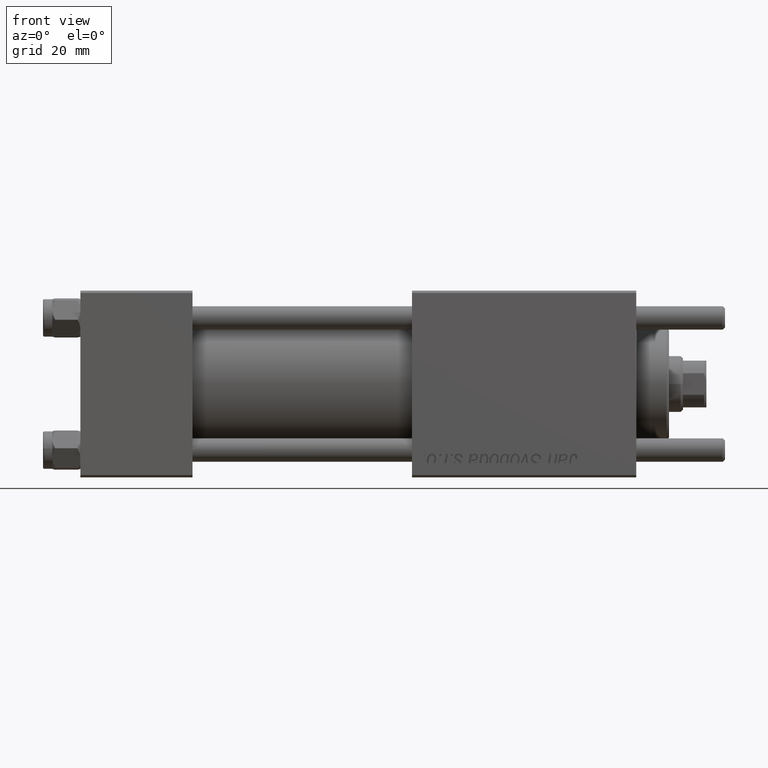
[diagram: clean part render]
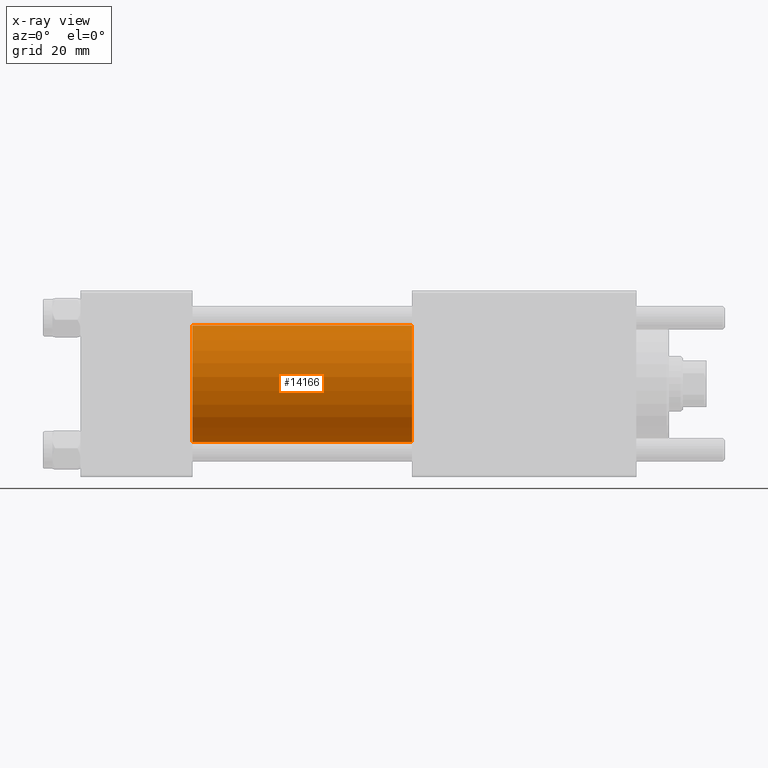
[diagram: x-ray — body ghosted, one internal face saturated and labeled with its STEP entity id]
A machine part, front view, then the same camera in x-ray: the body is ghosted and one INTERNAL B-rep face — a face not visible from any outside direction — is saturated and labeled: STEP entity #14166.
In plain terms, the highlighted cylindrical surface (partial cylindrical patch) has radius 12.5 mm, axis along (-1, -0, -0).
Its self-contained STEP definition (entity closure, byte-faithful):
#401 = ORIENTED_EDGE ( 'NONE', *, *, #16987, .T. ) ;
#1489 = FACE_OUTER_BOUND ( 'NONE', #1787, .T. ) ;
#1787 = EDGE_LOOP ( 'NONE', ( #401, #44599, #51113, #30056 ) ) ;
#3051 = CARTESIAN_POINT ( 'NONE',  ( 71.00000000000001421, -2.602085213965210642E-15, 12.49999999999999645 ) ) ;
#3223 = VECTOR ( 'NONE', #37489, 1000.000000000000000 ) ;
#3783 = DIRECTION ( 'NONE',  ( 1.000000000000000000, 0.000000000000000000, 0.000000000000000000 ) ) ;
#4624 = CIRCLE ( 'NONE', #36692, 12.49999999999999645 ) ;
#5232 = DIRECTION ( 'NONE',  ( -1.000000000000000000, -0.000000000000000000, -0.000000000000000000 ) ) ;
#8180 = VERTEX_POINT ( 'NONE', #35498 ) ;
#11713 = EDGE_CURVE ( 'NONE', #17532, #8180, #35601, .T. ) ;
#13518 = VERTEX_POINT ( 'NONE', #53064 ) ;
#14166 = ADVANCED_FACE ( 'NONE', ( #1489 ), #53450, .F. ) ;
#14702 = DIRECTION ( 'NONE',  ( 0.000000000000000000, 0.000000000000000000, 1.000000000000000000 ) ) ;
#16987 = EDGE_CURVE ( 'NONE', #51542, #17532, #4624, .T. ) ;
#17532 = VERTEX_POINT ( 'NONE', #17837 ) ;
#17837 = CARTESIAN_POINT ( 'NONE',  ( 71.00000000000001421, -1.071276715031019515E-15, -12.49999999999999645 ) ) ;
#25577 = CARTESIAN_POINT ( 'NONE',  ( 24.00000000000000000, -2.602085213965210642E-15, 0.000000000000000000 ) ) ;
#25809 = CARTESIAN_POINT ( 'NONE',  ( 71.00000000000001421, -2.602085213965210642E-15, 12.49999999999999645 ) ) ;
#26395 = DIRECTION ( 'NONE',  ( -1.000000000000000000, -0.000000000000000000, -0.000000000000000000 ) ) ;
#27582 = CARTESIAN_POINT ( 'NONE',  ( 71.00000000000001421, -2.602085213965210642E-15, 0.000000000000000000 ) ) ;
#28371 = AXIS2_PLACEMENT_3D ( 'NONE', #27582, #5232, #14702 ) ;
#30056 = ORIENTED_EDGE ( 'NONE', *, *, #37215, .F. ) ;
#31841 = EDGE_CURVE ( 'NONE', #13518, #8180, #46224, .T. ) ;
#35064 = DIRECTION ( 'NONE',  ( 0.000000000000000000, 0.000000000000000000, -1.000000000000000000 ) ) ;
#35498 = CARTESIAN_POINT ( 'NONE',  ( 24.00000000000000000, -1.071276715031019515E-15, -12.49999999999999645 ) ) ;
#35601 = LINE ( 'NONE', #48829, #42200 ) ;
#36692 = AXIS2_PLACEMENT_3D ( 'NONE', #42392, #51287, #46435 ) ;
#37215 = EDGE_CURVE ( 'NONE', #51542, #13518, #55561, .T. ) ;
#37489 = DIRECTION ( 'NONE',  ( -1.000000000000000000, -0.000000000000000000, -0.000000000000000000 ) ) ;
#37896 = AXIS2_PLACEMENT_3D ( 'NONE', #25577, #3783, #35064 ) ;
#42200 = VECTOR ( 'NONE', #26395, 1000.000000000000000 ) ;
#42392 = CARTESIAN_POINT ( 'NONE',  ( 71.00000000000001421, -2.602085213965210642E-15, 0.000000000000000000 ) ) ;
#44599 = ORIENTED_EDGE ( 'NONE', *, *, #11713, .T. ) ;
#46224 = CIRCLE ( 'NONE', #37896, 12.49999999999999645 ) ;
#46435 = DIRECTION ( 'NONE',  ( 0.000000000000000000, 0.000000000000000000, -1.000000000000000000 ) ) ;
#48829 = CARTESIAN_POINT ( 'NONE',  ( 71.00000000000001421, -1.071276715031019515E-15, -12.49999999999999645 ) ) ;
#51113 = ORIENTED_EDGE ( 'NONE', *, *, #31841, .F. ) ;
#51287 = DIRECTION ( 'NONE',  ( 1.000000000000000000, 0.000000000000000000, 0.000000000000000000 ) ) ;
#51542 = VERTEX_POINT ( 'NONE', #25809 ) ;
#53064 = CARTESIAN_POINT ( 'NONE',  ( 24.00000000000000000, -2.602085213965210642E-15, 12.49999999999999645 ) ) ;
#53450 = CYLINDRICAL_SURFACE ( 'NONE', #28371, 12.49999999999999645 ) ;
#55561 = LINE ( 'NONE', #3051, #3223 ) ;